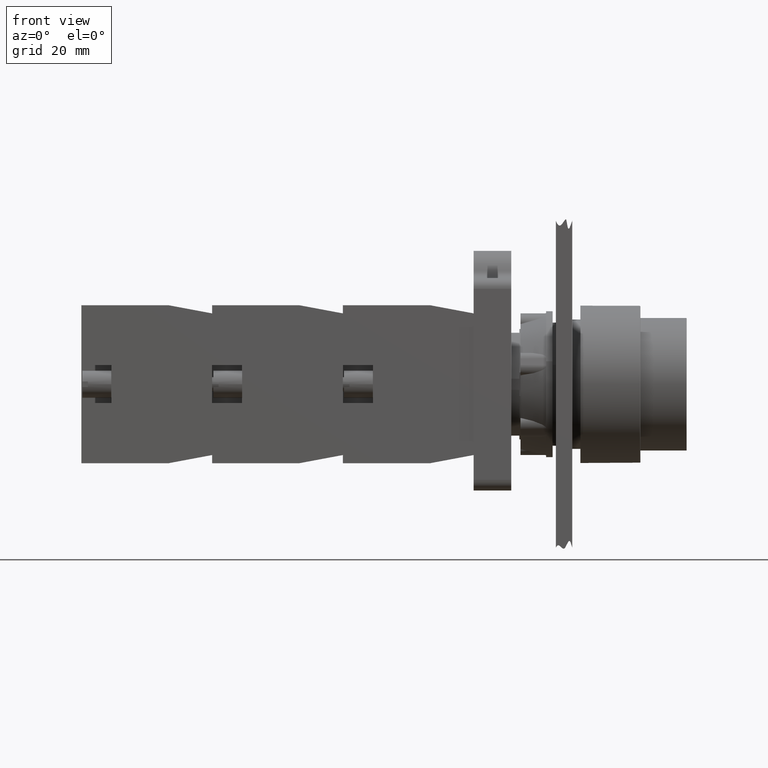
[diagram: clean part render]
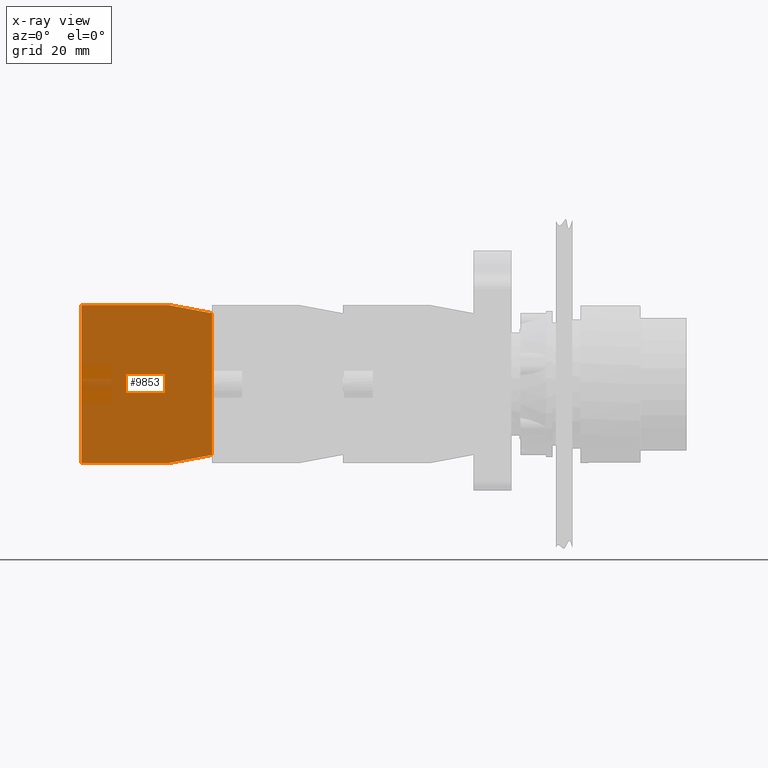
[diagram: x-ray — body ghosted, one internal face saturated and labeled with its STEP entity id]
A machine part, front view, then the same camera in x-ray: the body is ghosted and one INTERNAL B-rep face — a face not visible from any outside direction — is saturated and labeled: STEP entity #9853.
In plain terms, the highlighted planar face has unit normal (-0, -1, -0).
Its self-contained STEP definition (entity closure, byte-faithful):
#8158=CARTESIAN_POINT('',(-44.936741828918471,23.797073323279623,0.0));
#8159=VERTEX_POINT('',#8158);
#8166=CARTESIAN_POINT('',(-44.936741828918457,7.797073323279626,0.0));
#8167=VERTEX_POINT('',#8166);
#8168=CARTESIAN_POINT('',(-44.936741828918457,7.797073323279626,0.0));
#8169=DIRECTION('',(0.0,1.0,0.0));
#8170=VECTOR('',#8169,15.999999999999996);
#8171=LINE('',#8168,#8170);
#8172=EDGE_CURVE('',#8167,#8159,#8171,.T.);
#8349=CARTESIAN_POINT('',(-43.436741828918457,-0.202926676720380,0.0));
#8350=VERTEX_POINT('',#8349);
#8357=CARTESIAN_POINT('',(-17.436741828918457,-0.202926676720377,0.0));
#8358=VERTEX_POINT('',#8357);
#8359=CARTESIAN_POINT('',(-17.436741828918457,-0.202926676720377,0.0));
#8360=DIRECTION('',(-1.0,0.0,0.0));
#8361=VECTOR('',#8360,26.0);
#8362=LINE('',#8359,#8361);
#8363=EDGE_CURVE('',#8358,#8350,#8362,.T.);
#9707=CARTESIAN_POINT('',(-15.936741828918466,23.797073323279626,0.0));
#9708=VERTEX_POINT('',#9707);
#9715=CARTESIAN_POINT('',(-44.936741828918471,23.797073323279623,0.0));
#9716=DIRECTION('',(1.0,0.0,0.0));
#9717=VECTOR('',#9716,29.000000000000007);
#9718=LINE('',#9715,#9717);
#9719=EDGE_CURVE('',#8159,#9708,#9718,.T.);
#9755=CARTESIAN_POINT('',(-15.936741828918466,7.797073323279626,0.0));
#9756=VERTEX_POINT('',#9755);
#9763=CARTESIAN_POINT('',(-15.936741828918466,23.797073323279626,0.0));
#9764=DIRECTION('',(0.0,-1.0,0.0));
#9765=VECTOR('',#9764,16.0);
#9766=LINE('',#9763,#9765);
#9767=EDGE_CURVE('',#9708,#9756,#9766,.T.);
#9795=CARTESIAN_POINT('',(-15.936741828918466,7.797073323279626,0.0));
#9796=DIRECTION('',(-0.184288535050184,-0.982872186934322,0.0));
#9797=VECTOR('',#9796,8.139410298049855);
#9798=LINE('',#9795,#9797);
#9799=EDGE_CURVE('',#9756,#8358,#9798,.T.);
#9812=CARTESIAN_POINT('',(-43.436741828918457,-0.202926676720380,0.0));
#9813=DIRECTION('',(-0.184288535050185,0.982872186934322,0.0));
#9814=VECTOR('',#9813,8.139410298049860);
#9815=LINE('',#9812,#9814);
#9816=EDGE_CURVE('',#8350,#8167,#9815,.T.);
#9840=CARTESIAN_POINT('',(-30.436741828918464,12.124046801833057,0.0));
#9841=DIRECTION('',(0.0,0.0,1.0));
#9842=DIRECTION('',(1.0,0.0,0.0));
#9843=AXIS2_PLACEMENT_3D('',#9840,#9841,#9842);
#9844=PLANE('',#9843);
#9845=ORIENTED_EDGE('',*,*,#9719,.T.);
#9846=ORIENTED_EDGE('',*,*,#9767,.T.);
#9847=ORIENTED_EDGE('',*,*,#9799,.T.);
#9848=ORIENTED_EDGE('',*,*,#8363,.T.);
#9849=ORIENTED_EDGE('',*,*,#9816,.T.);
#9850=ORIENTED_EDGE('',*,*,#8172,.T.);
#9851=EDGE_LOOP('',(#9845,#9846,#9847,#9848,#9849,#9850));
#9852=FACE_OUTER_BOUND('',#9851,.T.);
#9853=ADVANCED_FACE('',(#9852),#9844,.F.);